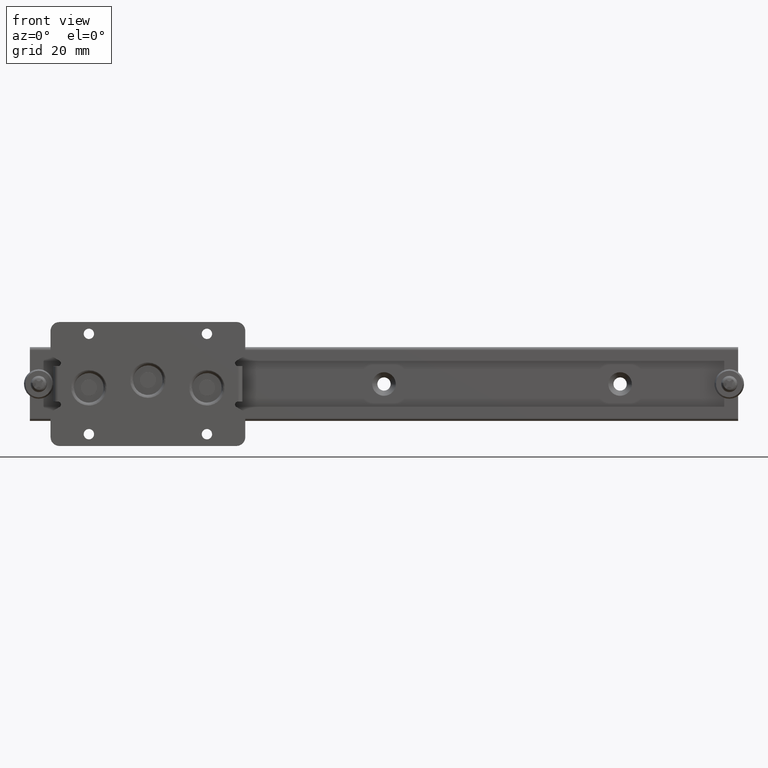
[diagram: clean part render]
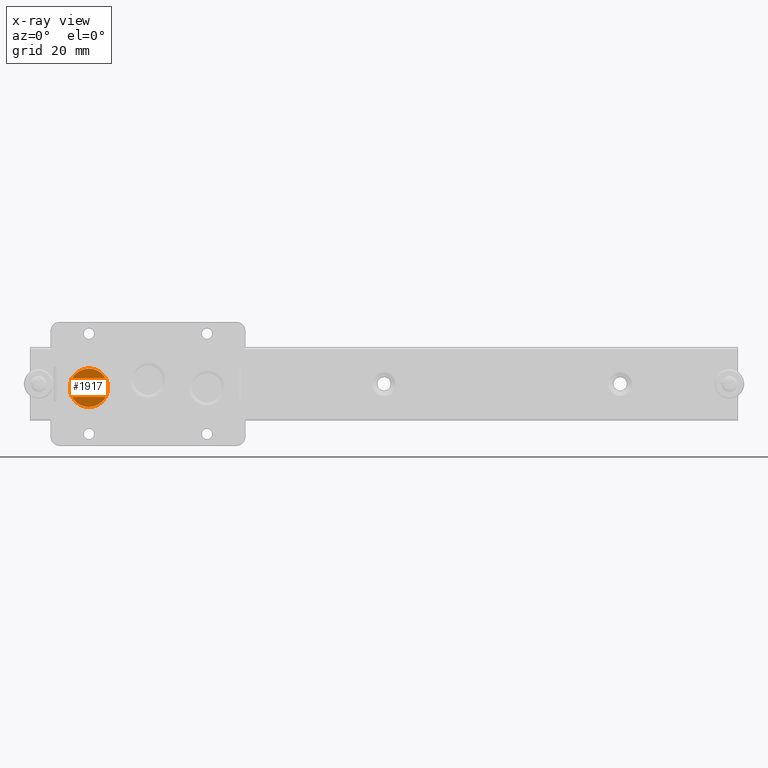
[diagram: x-ray — body ghosted, one internal face saturated and labeled with its STEP entity id]
A machine part, front view, then the same camera in x-ray: the body is ghosted and one INTERNAL B-rep face — a face not visible from any outside direction — is saturated and labeled: STEP entity #1917.
In plain terms, the highlighted face is a freeform B-spline surface patch.
Its self-contained STEP definition (entity closure, byte-faithful):
#1846=CARTESIAN_POINT('',(12.852907859076590,-2.599999999999935,-8.449349974684251));
#1847=CARTESIAN_POINT('',(12.852907859076590,-2.599999999999935,5.849350323609632));
#1848=CARTESIAN_POINT('',(27.147092489500469,-2.599999999999935,-8.449349974684251));
#1849=CARTESIAN_POINT('',(27.147092489500469,-2.599999999999935,5.849350323609632));
#1850=B_SPLINE_SURFACE_WITH_KNOTS('',1,1,((#1846,#1848),(#1847,#1849)),.UNSPECIFIED.,.F.,.F.,.U.,(2,2),(2,2),(0.0,14.298700298293880),(0.0,14.294184630423880),.UNSPECIFIED.);
#1851=CARTESIAN_POINT('',(13.502052762876639,-2.600000000000001,-1.136654377543351));
#1852=VERTEX_POINT('',#1851);
#1853=CARTESIAN_POINT('',(20.0,-2.600000000000000,-7.799999999880786));
#1854=VERTEX_POINT('',#1853);
#1855=CARTESIAN_POINT('',(13.502052762876644,-2.600000000000001,-1.136654377543352));
#1856=CARTESIAN_POINT('',(13.499999993215074,-2.600000000000000,-1.218314290015826));
#1857=CARTESIAN_POINT('',(13.499999993257971,-2.600000000000000,-1.299999999711413));
#1858=CARTESIAN_POINT('',(13.499999996671399,-2.600000000000001,-7.799999999797110));
#1859=CARTESIAN_POINT('',(20.0,-2.600000000000000,-7.799999999880786));
#1867=(BOUNDED_CURVE()B_SPLINE_CURVE(2,(#1855,#1856,#1857,#1858,#1859),.UNSPECIFIED.,.F.,.U.)B_SPLINE_CURVE_WITH_KNOTS((3,2,3),(0.745579891721761,0.750000000000000,1.0),.UNSPECIFIED.)CURVE()GEOMETRIC_REPRESENTATION_ITEM()RATIONAL_B_SPLINE_CURVE((0.989826157572977,0.994821521035530,1.0,0.707106781186547,1.0))REPRESENTATION_ITEM(''));
#1868=EDGE_CURVE('',#1852,#1854,#1867,.T.);
#1869=ORIENTED_EDGE('',*,*,#1868,.F.);
#1870=CARTESIAN_POINT('',(20.0,-2.600000000000000,5.200000000118993));
#1871=VERTEX_POINT('',#1870);
#1872=CARTESIAN_POINT('',(20.0,-2.600000000000000,5.200000000118993));
#1873=CARTESIAN_POINT('',(13.661343803153500,-2.600000000000000,5.200000000204801));
#1874=CARTESIAN_POINT('',(13.502052762876644,-2.600000000000001,-1.136654377543352));
#1882=(BOUNDED_CURVE()B_SPLINE_CURVE(2,(#1872,#1873,#1874),.UNSPECIFIED.,.F.,.U.)B_SPLINE_CURVE_WITH_KNOTS((3,3),(0.500000000000000,0.745579891721761),.UNSPECIFIED.)CURVE()GEOMETRIC_REPRESENTATION_ITEM()RATIONAL_B_SPLINE_CURVE((1.0,0.712285260151017,0.989826157572977))REPRESENTATION_ITEM(''));
#1883=EDGE_CURVE('',#1871,#1852,#1882,.T.);
#1884=ORIENTED_EDGE('',*,*,#1883,.F.);
#1885=CARTESIAN_POINT('',(26.497947237123359,-2.600000000000001,-1.463345622218441));
#1886=VERTEX_POINT('',#1885);
#1887=CARTESIAN_POINT('',(26.497947237123352,-2.600000000000001,-1.463345622218441));
#1888=CARTESIAN_POINT('',(26.500000006784934,-2.600000000000001,-1.381685709745968));
#1889=CARTESIAN_POINT('',(26.500000006742042,-2.600000000000001,-1.300000000050382));
#1890=CARTESIAN_POINT('',(26.500000003328598,-2.600000000000001,5.200000000035315));
#1891=CARTESIAN_POINT('',(20.0,-2.600000000000000,5.200000000118993));
#1899=(BOUNDED_CURVE()B_SPLINE_CURVE(2,(#1887,#1888,#1889,#1890,#1891),.UNSPECIFIED.,.F.,.U.)B_SPLINE_CURVE_WITH_KNOTS((3,2,3),(0.245579891721761,0.250000000000000,0.500000000000000),.UNSPECIFIED.)CURVE()GEOMETRIC_REPRESENTATION_ITEM()RATIONAL_B_SPLINE_CURVE((0.989826157572977,0.994821521035531,1.0,0.707106781186547,1.0))REPRESENTATION_ITEM(''));
#1900=EDGE_CURVE('',#1886,#1871,#1899,.T.);
#1901=ORIENTED_EDGE('',*,*,#1900,.F.);
#1902=CARTESIAN_POINT('',(20.0,-2.600000000000000,-7.799999999880786));
#1903=CARTESIAN_POINT('',(26.338656196846493,-2.600000000000000,-7.799999999966593));
#1904=CARTESIAN_POINT('',(26.497947237123359,-2.600000000000001,-1.463345622218441));
#1912=(BOUNDED_CURVE()B_SPLINE_CURVE(2,(#1902,#1903,#1904),.UNSPECIFIED.,.F.,.U.)B_SPLINE_CURVE_WITH_KNOTS((3,3),(0.0,0.245579891721761),.UNSPECIFIED.)CURVE()GEOMETRIC_REPRESENTATION_ITEM()RATIONAL_B_SPLINE_CURVE((1.0,0.712285260151017,0.989826157572977))REPRESENTATION_ITEM(''));
#1913=EDGE_CURVE('',#1854,#1886,#1912,.T.);
#1914=ORIENTED_EDGE('',*,*,#1913,.F.);
#1915=EDGE_LOOP('',(#1869,#1884,#1901,#1914));
#1916=FACE_OUTER_BOUND('',#1915,.T.);
#1917=ADVANCED_FACE('',(#1916),#1850,.T.);